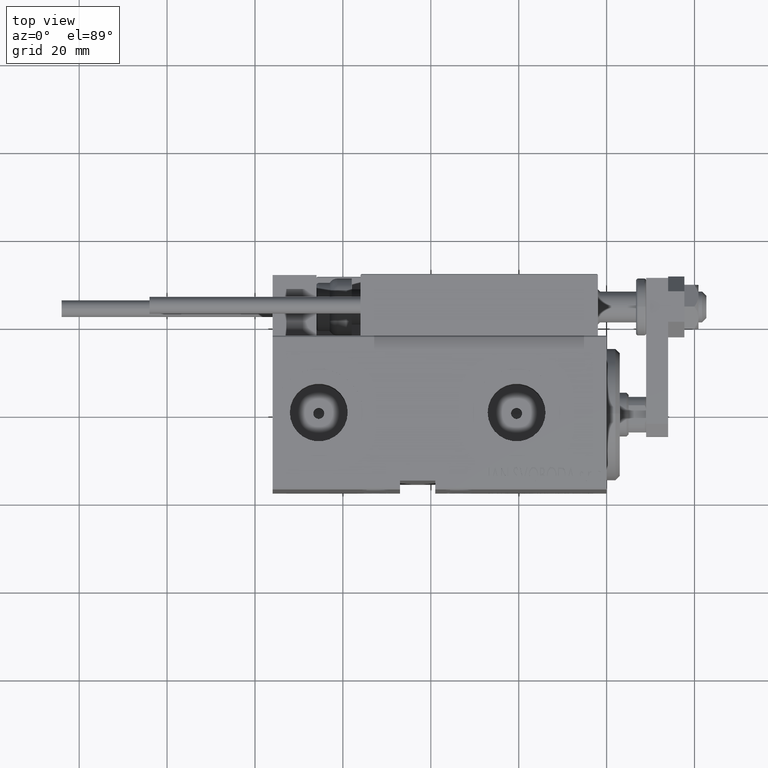
[diagram: clean part render]
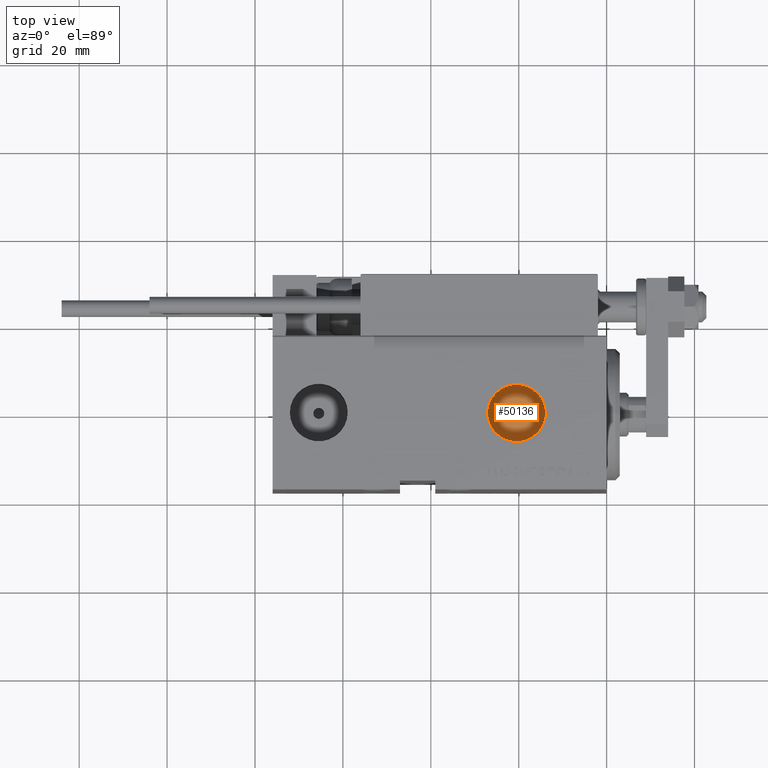
[diagram: same view with one face highlighted and labeled with its STEP entity id]
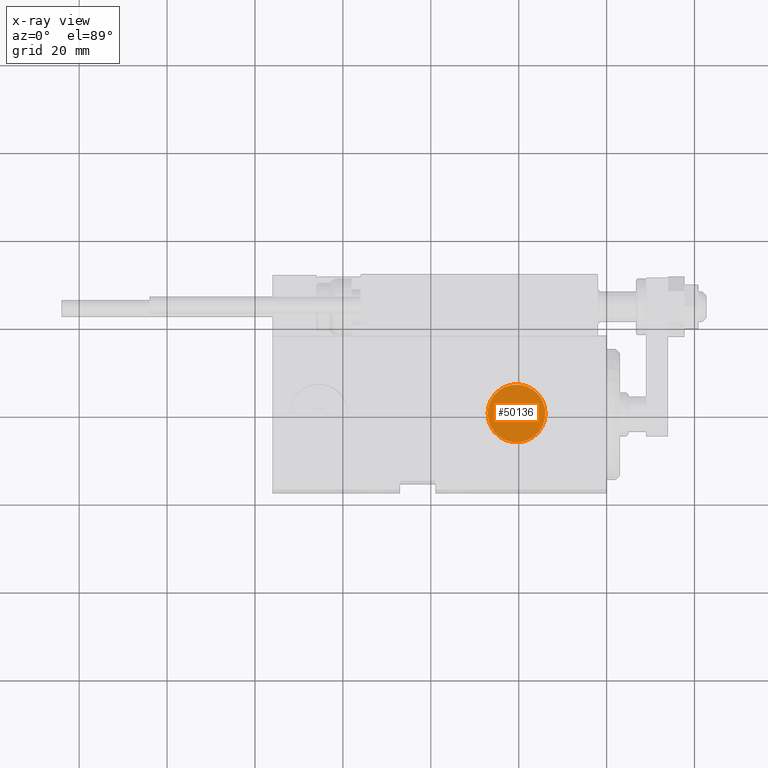
[diagram: x-ray of the same camera — body ghosted, the highlighted face saturated]
A machine part, top view. The second image highlights one B-rep face of the part: STEP entity #50136.
The next image is the same camera in x-ray: the body ghosted, the highlighted face saturated — about 0% of this face is hidden behind the body in this view.
In plain terms, the highlighted planar face has unit normal (0, 0, 1).
Its self-contained STEP definition (entity closure, byte-faithful):
#57 = ORIENTED_EDGE ( 'NONE', *, *, #45862, .T. ) ;
#1650 = VERTEX_POINT ( 'NONE', #8041 ) ;
#1924 = FACE_BOUND ( 'NONE', #28260, .T. ) ;
#6988 = EDGE_CURVE ( 'NONE', #16555, #35749, #36052, .T. ) ;
#7260 = CARTESIAN_POINT ( 'NONE',  ( 20.50000000000000000, 0.000000000000000000, 14.23999999999999666 ) ) ;
#8041 = CARTESIAN_POINT ( 'NONE',  ( 13.92000000000000171, 8.058175938389579572E-16, 14.23999999999999666 ) ) ;
#9701 = CARTESIAN_POINT ( 'NONE',  ( 21.75000000000000000, 0.000000000000000000, 14.23999999999999666 ) ) ;
#10578 = CARTESIAN_POINT ( 'NONE',  ( 20.50000000000000000, 0.000000000000000000, 14.23999999999999666 ) ) ;
#12337 = DIRECTION ( 'NONE',  ( 0.000000000000000000, 0.000000000000000000, 1.000000000000000000 ) ) ;
#14651 = DIRECTION ( 'NONE',  ( 0.000000000000000000, 0.000000000000000000, 1.000000000000000000 ) ) ;
#15365 = EDGE_CURVE ( 'NONE', #35749, #16555, #29773, .T. ) ;
#16555 = VERTEX_POINT ( 'NONE', #19284 ) ;
#16856 = VERTEX_POINT ( 'NONE', #46060 ) ;
#17775 = CIRCLE ( 'NONE', #32664, 6.579999999999999183 ) ;
#18252 = EDGE_LOOP ( 'NONE', ( #49002, #57 ) ) ;
#18254 = DIRECTION ( 'NONE',  ( 1.000000000000000000, 0.000000000000000000, 0.000000000000000000 ) ) ;
#19154 = DIRECTION ( 'NONE',  ( 1.000000000000000000, 0.000000000000000000, 0.000000000000000000 ) ) ;
#19284 = CARTESIAN_POINT ( 'NONE',  ( 19.25000000000000355, 1.530808498934188119E-16, 14.23999999999999666 ) ) ;
#20180 = CIRCLE ( 'NONE', #25973, 6.579999999999999183 ) ;
#21632 = CARTESIAN_POINT ( 'NONE',  ( 20.50000000000000000, 0.000000000000000000, 14.23999999999999666 ) ) ;
#24063 = DIRECTION ( 'NONE',  ( 1.000000000000000000, 0.000000000000000000, 0.000000000000000000 ) ) ;
#25548 = DIRECTION ( 'NONE',  ( 0.000000000000000000, 0.000000000000000000, 1.000000000000000000 ) ) ;
#25973 = AXIS2_PLACEMENT_3D ( 'NONE', #48007, #12337, #24063 ) ;
#26528 = DIRECTION ( 'NONE',  ( 0.000000000000000000, 0.000000000000000000, 1.000000000000000000 ) ) ;
#27285 = DIRECTION ( 'NONE',  ( 1.000000000000000000, 0.000000000000000000, 0.000000000000000000 ) ) ;
#28260 = EDGE_LOOP ( 'NONE', ( #50938, #31843 ) ) ;
#29773 = CIRCLE ( 'NONE', #34795, 1.249999999999997558 ) ;
#31843 = ORIENTED_EDGE ( 'NONE', *, *, #6988, .F. ) ;
#31964 = EDGE_CURVE ( 'NONE', #16856, #1650, #17775, .T. ) ;
#32664 = AXIS2_PLACEMENT_3D ( 'NONE', #10578, #50144, #19154 ) ;
#34423 = FACE_OUTER_BOUND ( 'NONE', #18252, .T. ) ;
#34679 = CARTESIAN_POINT ( 'NONE',  ( 20.50000000000000000, 0.000000000000000000, 14.23999999999999666 ) ) ;
#34795 = AXIS2_PLACEMENT_3D ( 'NONE', #21632, #25548, #18254 ) ;
#35749 = VERTEX_POINT ( 'NONE', #9701 ) ;
#36052 = CIRCLE ( 'NONE', #47692, 1.249999999999997558 ) ;
#41719 = DIRECTION ( 'NONE',  ( 1.000000000000000000, 0.000000000000000000, -0.000000000000000000 ) ) ;
#43579 = AXIS2_PLACEMENT_3D ( 'NONE', #34679, #14651, #41719 ) ;
#45862 = EDGE_CURVE ( 'NONE', #1650, #16856, #20180, .T. ) ;
#46060 = CARTESIAN_POINT ( 'NONE',  ( 27.07999999999999829, 0.000000000000000000, 14.23999999999999666 ) ) ;
#47692 = AXIS2_PLACEMENT_3D ( 'NONE', #7260, #26528, #27285 ) ;
#48007 = CARTESIAN_POINT ( 'NONE',  ( 20.50000000000000000, 0.000000000000000000, 14.23999999999999666 ) ) ;
#49002 = ORIENTED_EDGE ( 'NONE', *, *, #31964, .T. ) ;
#50136 = ADVANCED_FACE ( 'NONE', ( #1924, #34423 ), #50317, .T. ) ;
#50144 = DIRECTION ( 'NONE',  ( 0.000000000000000000, 0.000000000000000000, 1.000000000000000000 ) ) ;
#50317 = PLANE ( 'NONE',  #43579 ) ;
#50938 = ORIENTED_EDGE ( 'NONE', *, *, #15365, .F. ) ;